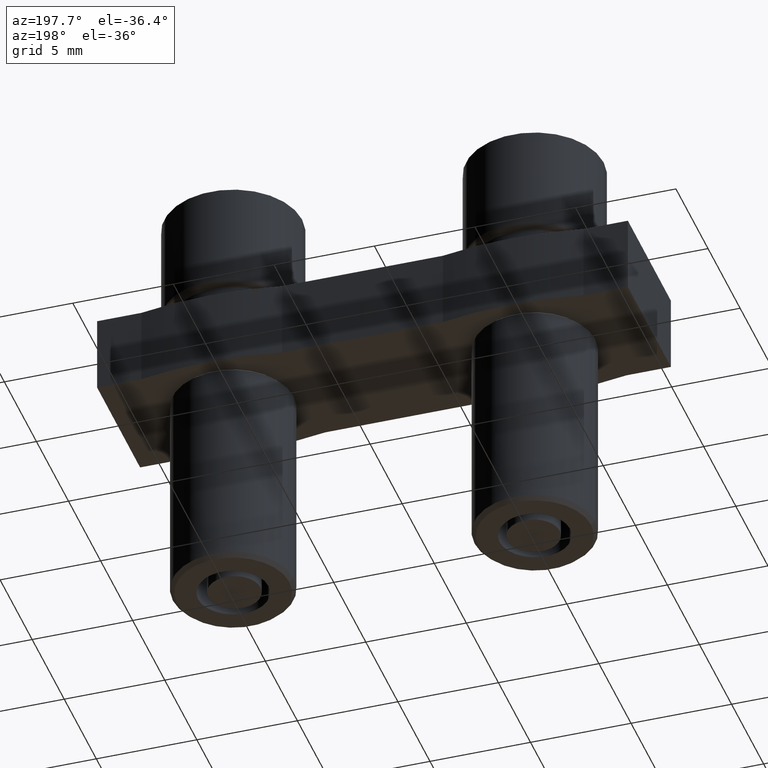
[diagram: clean part render]
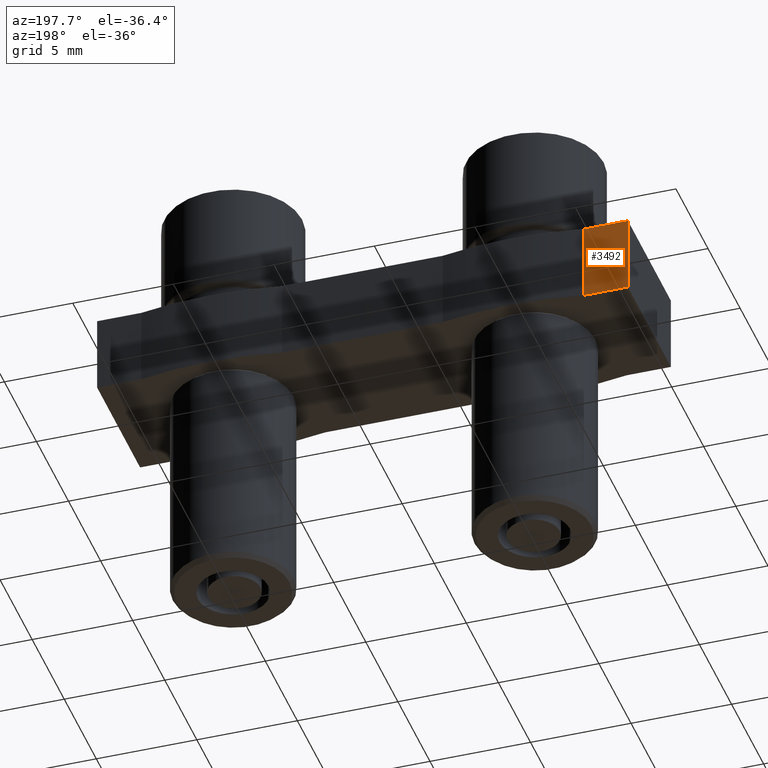
[diagram: same view with one face highlighted and labeled with its STEP entity id]
A machine part, auxiliary view. The second image highlights one B-rep face of the part: STEP entity #3492.
In plain terms, the highlighted planar face has unit normal (0, -1, 0).
Its self-contained STEP definition (entity closure, byte-faithful):
#367 = FACE_OUTER_BOUND ( 'NONE', #1935, .T. ) ;
#370 = PLANE ( 'NONE',  #3158 ) ;
#378 = CARTESIAN_POINT ( 'NONE',  ( 16.15000000000000900, 3.350000000000087100, -0.9000000000000014700 ) ) ;
#379 = DIRECTION ( 'NONE',  ( 1.000000000000000000, 1.245679091791856200E-016, 0.0000000000000000000 ) ) ;
#382 = DIRECTION ( 'NONE',  ( 1.245679091791856200E-016, -1.000000000000000000, 0.0000000000000000000 ) ) ;
#1096 = LINE ( 'NONE', #1102, #2856 ) ;
#1102 = CARTESIAN_POINT ( 'NONE',  ( -62.85000000000001600, 3.350000000000084500, -4.800000000000001600 ) ) ;
#1106 = DIRECTION ( 'NONE',  ( 1.000000000000000000, -0.0000000000000000000, 0.0000000000000000000 ) ) ;
#1134 = LINE ( 'NONE', #1138, #2933 ) ;
#1138 = CARTESIAN_POINT ( 'NONE',  ( -3.500000000000079000, 3.350000000000082200, -11.80160695840604700 ) ) ;
#1141 = DIRECTION ( 'NONE',  ( 0.0000000000000000000, 0.0000000000000000000, 1.000000000000000000 ) ) ;
#1149 = LINE ( 'NONE', #1180, #2884 ) ;
#1165 = DIRECTION ( 'NONE',  ( 0.0000000000000000000, 0.0000000000000000000, -1.000000000000000000 ) ) ;
#1180 = CARTESIAN_POINT ( 'NONE',  ( -5.699999999999999300, 3.350000000000084500, -4.800000000000001600 ) ) ;
#1235 = CARTESIAN_POINT ( 'NONE',  ( 16.15000000000000900, 3.350000000000087100, -0.9000000000000014700 ) ) ;
#1239 = LINE ( 'NONE', #1235, #2880 ) ;
#1245 = DIRECTION ( 'NONE',  ( -1.000000000000000000, -1.245679091791856200E-016, -0.0000000000000000000 ) ) ;
#1828 = CARTESIAN_POINT ( 'NONE',  ( -3.500000000000049700, 3.350000000000085800, -0.9000000000000014700 ) ) ;
#1935 = EDGE_LOOP ( 'NONE', ( #2477, #2531, #2538, #2502 ) ) ;
#2108 = CARTESIAN_POINT ( 'NONE',  ( -5.700000000000000200, 3.350000000000084500, -0.9000000000000014700 ) ) ;
#2134 = CARTESIAN_POINT ( 'NONE',  ( -5.699999999999996600, 3.350000000000084500, -4.800000000000001600 ) ) ;
#2152 = CARTESIAN_POINT ( 'NONE',  ( -3.500000000000093700, 3.350000000000082200, -4.800000000000001600 ) ) ;
#2241 = VERTEX_POINT ( 'NONE', #2134 ) ;
#2283 = VERTEX_POINT ( 'NONE', #2108 ) ;
#2301 = VERTEX_POINT ( 'NONE', #2152 ) ;
#2336 = VERTEX_POINT ( 'NONE', #1828 ) ;
#2477 = ORIENTED_EDGE ( 'NONE', *, *, #3298, .F. ) ;
#2502 = ORIENTED_EDGE ( 'NONE', *, *, #3276, .F. ) ;
#2531 = ORIENTED_EDGE ( 'NONE', *, *, #3321, .F. ) ;
#2538 = ORIENTED_EDGE ( 'NONE', *, *, #3288, .F. ) ;
#2856 = VECTOR ( 'NONE', #1106, 1000.000000000000000 ) ;
#2880 = VECTOR ( 'NONE', #1245, 1000.000000000000000 ) ;
#2884 = VECTOR ( 'NONE', #1165, 1000.000000000000000 ) ;
#2933 = VECTOR ( 'NONE', #1141, 1000.000000000000000 ) ;
#3158 = AXIS2_PLACEMENT_3D ( 'NONE', #378, #382, #379 ) ;
#3276 = EDGE_CURVE ( 'NONE', #2241, #2301, #1096, .T. ) ;
#3288 = EDGE_CURVE ( 'NONE', #2301, #2336, #1134, .T. ) ;
#3298 = EDGE_CURVE ( 'NONE', #2283, #2241, #1149, .T. ) ;
#3321 = EDGE_CURVE ( 'NONE', #2336, #2283, #1239, .T. ) ;
#3492 = ADVANCED_FACE ( 'NONE', ( #367 ), #370, .F. ) ;